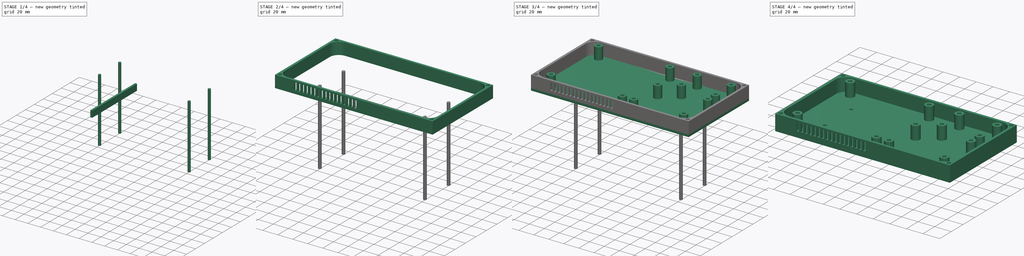
[diagram: build sequence overview — one tinted view per stage of 4, left to right]
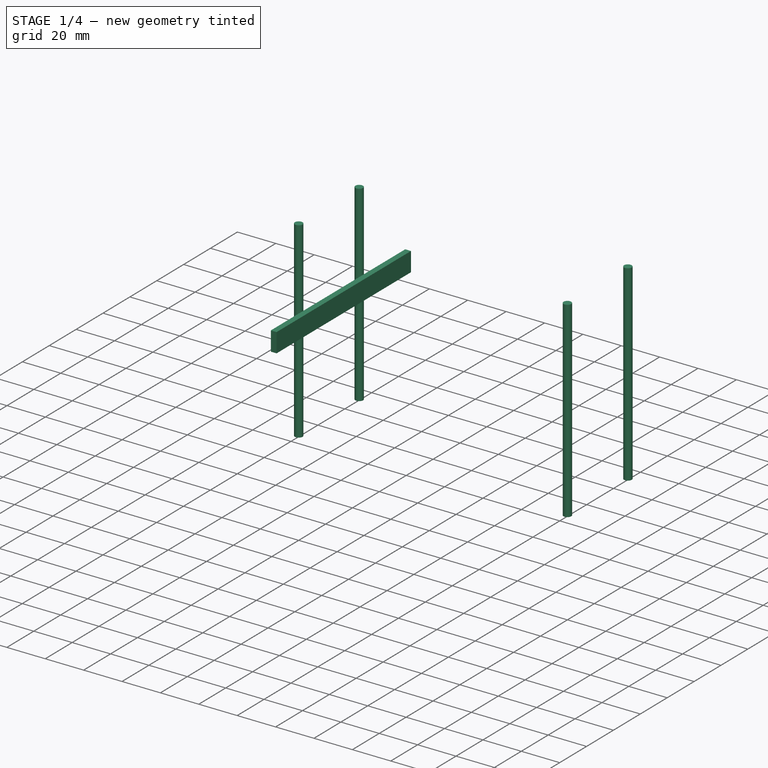
[diagram: stage 1 of 4 — iso view after this stage's code; geometry added in this stage tinted green]
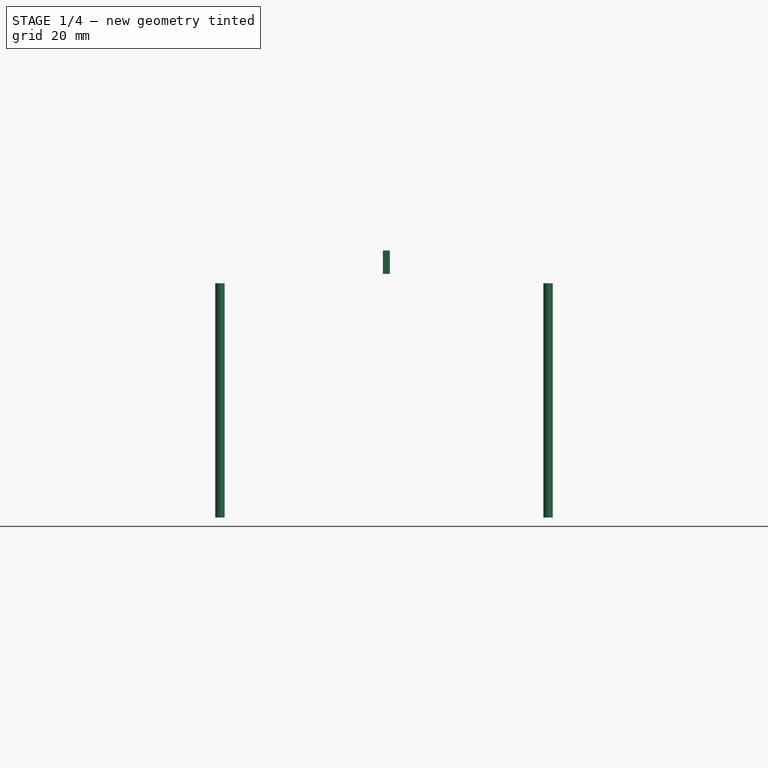
[diagram: stage 1 of 4 — front view after this stage's code; geometry added in this stage tinted green]
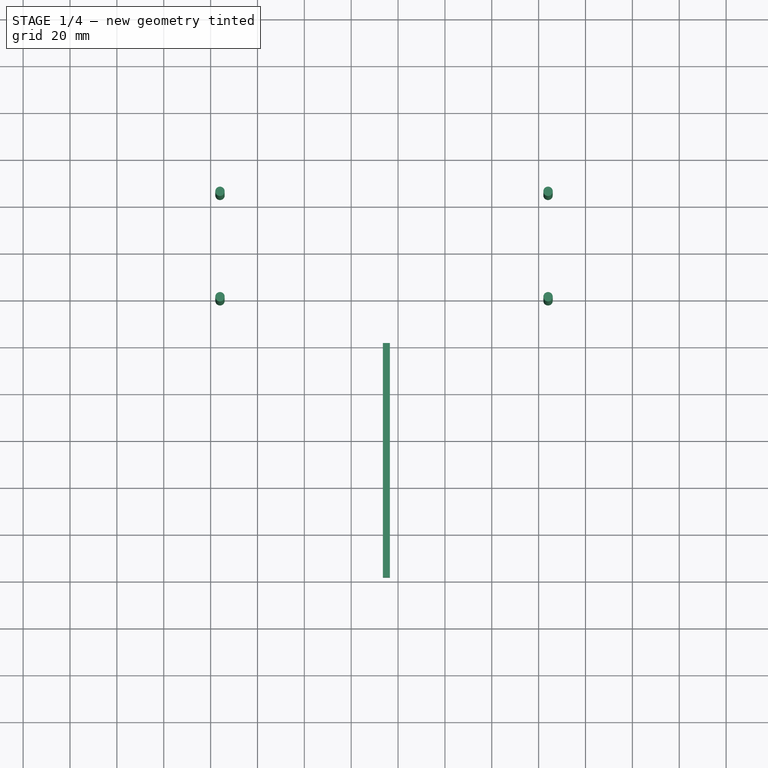
[diagram: stage 1 of 4 — top view after this stage's code; geometry added in this stage tinted green]
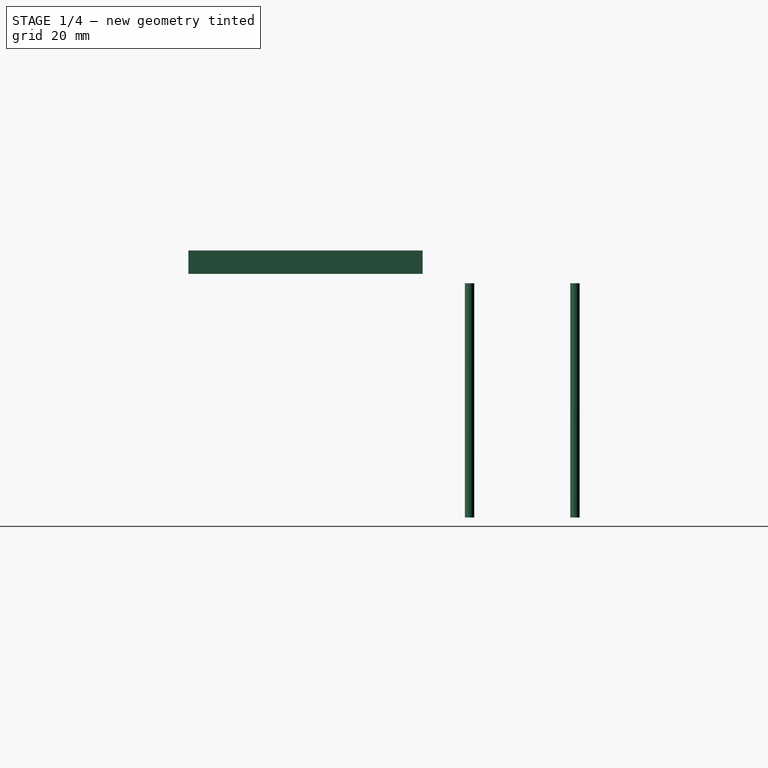
[diagram: stage 1 of 4 — right view after this stage's code; geometry added in this stage tinted green]
FCSTD DOCUMENT  (FreeCAD 0.15R4606 (Git))
Label: electronics_carrier
License: All rights reserved
LicenseURL: http://en.wikipedia.org/wiki/All_rights_reserved
objects: Sketcher::SketchObject×5, PartDesign::Pad×5, Part::MultiFuse×2, Part::Cut×2, Part::FeaturePython×1
note: 20 computed .brp shape members not serialized (recipe doc carries the construction recipe); baked Part::Feature solids carry a one-line shape summary decoded from their .brp

FEATURE [Sketcher::SketchObject] Sketch003
  Placement = pos=(0,0,0) rot=(-1,0,0;4.71239rad)
  sketch-geometry (4):
    g0: LineSegment StartX=-6.5 StartY=14 StartZ=0 EndX=-3.5 EndY=14 EndZ=0
    g1: LineSegment StartX=-3.5 StartY=14 StartZ=0 EndX=-3.5 EndY=4 EndZ=0
    g2: LineSegment StartX=-3.5 StartY=4 StartZ=0 EndX=-6.5 EndY=4 EndZ=0
    g3: LineSegment StartX=-6.5 StartY=4 StartZ=0 EndX=-6.5 EndY=14 EndZ=0
  constraints (12):
    c: Coincident(g0,g1)
    c: Coincident(g1,g2)
    c: Coincident(g2,g3)
    c: Coincident(g3,g0)
    c: Horizontal(g0)
    c: Horizontal(g2)
    c: Vertical(g1)
    c: Vertical(g3)
    c: DistanceX(g-1,g1) = -3.5
    c: Distance(g2) = 3
    c: Distance(g3) = 10
    c: DistanceY(g-1,g1) = 4
FEATURE [PartDesign::Pad] Pad003  label="Air Hole"
  Length = 100
  Length2 = 100
  Placement = pos=(0,0,0) rot=(-1,0,0;4.71239rad)
  Sketch = -> Sketch003
  Type = 0
FEATURE [Sketcher::SketchObject] Sketch004
  sketch-geometry (8):
    g0: Circle CenterX=-76 CenterY=65 CenterZ=0 NormalX=0 NormalY=0 NormalZ=1 Radius=2
    g1: Circle CenterX=-76 CenterY=20 CenterZ=0 NormalX=0 NormalY=0 NormalZ=1 Radius=2
    g2: Circle CenterX=64 CenterY=65 CenterZ=0 NormalX=0 NormalY=0 NormalZ=1 Radius=2
    g3: Circle CenterX=64 CenterY=20 CenterZ=0 NormalX=0 NormalY=0 NormalZ=1 Radius=2
    g4: LineSegment [constr] StartX=-76 StartY=65 StartZ=0 EndX=64 EndY=65 EndZ=0
    g5: LineSegment [constr] StartX=64 StartY=65 StartZ=0 EndX=64 EndY=20 EndZ=0
    g6: LineSegment [constr] StartX=64 StartY=20 StartZ=0 EndX=-76 EndY=20 EndZ=0
    g7: LineSegment [constr] StartX=-76 StartY=20 StartZ=0 EndX=-76 EndY=65 EndZ=0
  constraints (20):
    c: Radius(g0) = 2
    c: Equal(g1,g0)
    c: Equal(g0,g2)
    c: Equal(g2,g3)
    c: Coincident(g4,g5)
    c: Coincident(g5,g6)
    c: Coincident(g6,g7)
    c: Coincident(g7,g4)
    c: Horizontal(g4)
    c: Horizontal(g6)
    c: Vertical(g5)
    c: Vertical(g7)
    c: Distance(g5) = 45
    c: Distance(g4) = 140
    c: Coincident(g1,g6)
    c: Coincident(g0,g4)
    c: Coincident(g2,g4)
    c: Coincident(g3,g5)
    c: DistanceX(g-2,g1) = -76
    c: DistanceY(g-1,g3) = 20
FEATURE [PartDesign::Pad] Pad004  label="Base Mount Holes"
  Length = 100
  Length2 = 100
  Reversed = true
  Sketch = -> Sketch004
  Type = 0
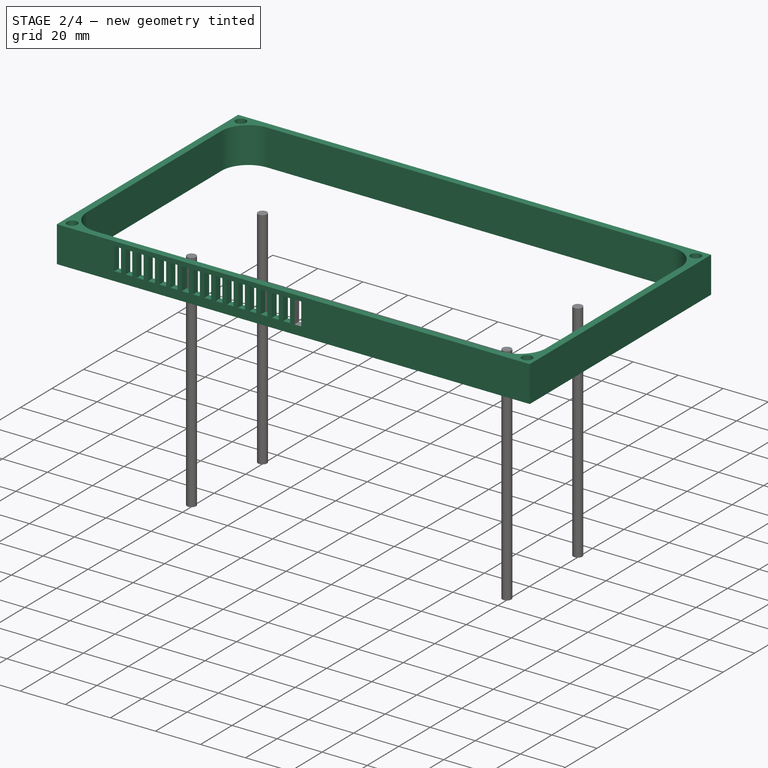
[diagram: stage 2 of 4 — iso view after this stage's code; geometry added in this stage tinted green]
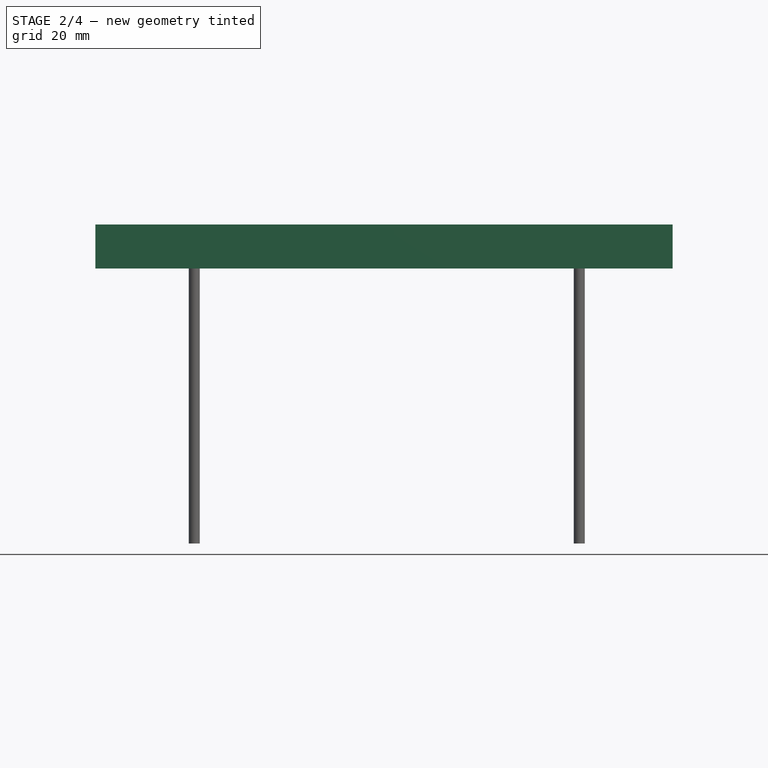
[diagram: stage 2 of 4 — front view after this stage's code; geometry added in this stage tinted green]
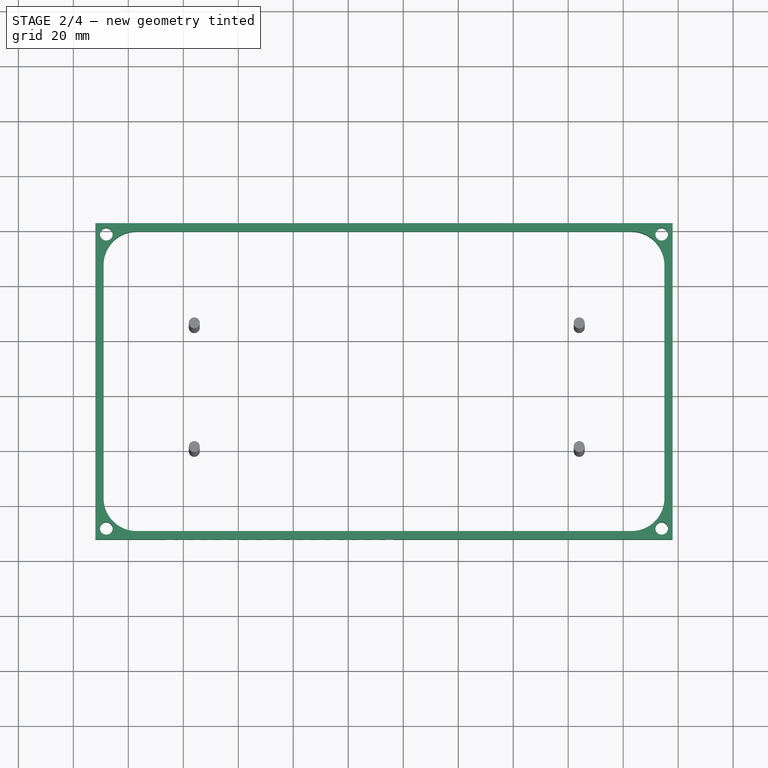
[diagram: stage 2 of 4 — top view after this stage's code; geometry added in this stage tinted green]
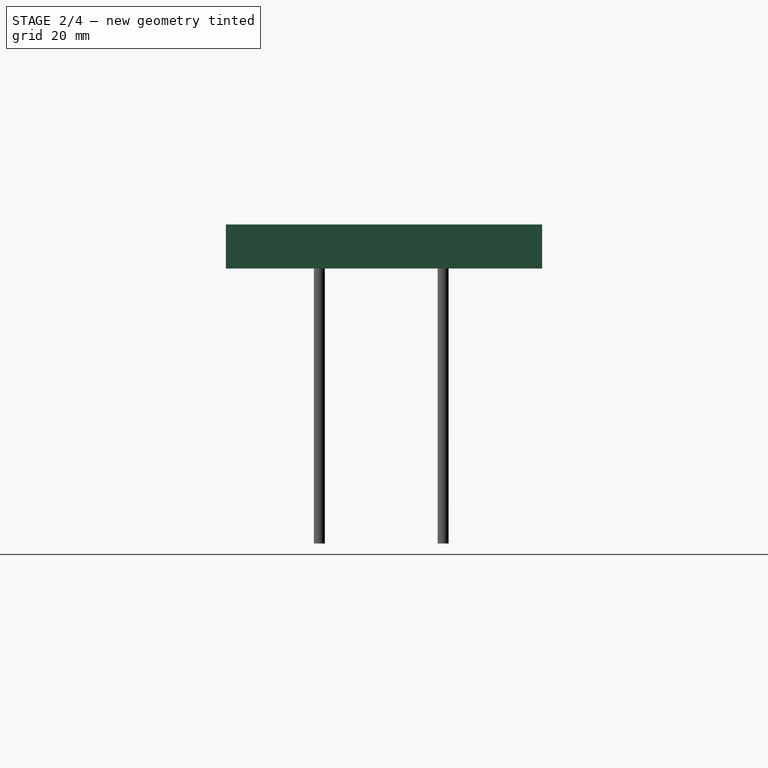
[diagram: stage 2 of 4 — right view after this stage's code; geometry added in this stage tinted green]
FEATURE [Sketcher::SketchObject] Sketch002
  sketch-geometry (16):
    g0: LineSegment StartX=-112 StartY=101 StartZ=0 EndX=98 EndY=101 EndZ=0
    g1: LineSegment StartX=98 StartY=101 StartZ=0 EndX=98 EndY=-14 EndZ=0
    g2: LineSegment StartX=98 StartY=-14 StartZ=0 EndX=-112 EndY=-14 EndZ=0
    g3: LineSegment StartX=-112 StartY=-14 StartZ=0 EndX=-112 EndY=101 EndZ=0
    g4: LineSegment StartX=-97 StartY=98 StartZ=0 EndX=83 EndY=98 EndZ=0
    g5: LineSegment StartX=95 StartY=86 StartZ=0 EndX=95 EndY=1 EndZ=0
    g6: LineSegment StartX=83 StartY=-11 StartZ=0 EndX=-97 EndY=-11 EndZ=0
    g7: LineSegment StartX=-109 StartY=1 StartZ=0 EndX=-109 EndY=86 EndZ=0
    g8: ArcOfCircle CenterX=-97 CenterY=86 CenterZ=0 NormalX=0 NormalY=0 NormalZ=1 Radius=12 StartAngle=1.5708 EndAngle=3.14159
    g9: ArcOfCircle CenterX=83 CenterY=86 CenterZ=0 NormalX=0 NormalY=0 NormalZ=1 Radius=12 StartAngle=0 EndAngle=1.5708
    g10: ArcOfCircle CenterX=83 CenterY=1 CenterZ=0 NormalX=0 NormalY=0 NormalZ=1 Radius=12 StartAngle=4.71239 EndAngle=6.28319
    g11: ArcOfCircle CenterX=-97 CenterY=1 CenterZ=0 NormalX=0 NormalY=0 NormalZ=1 Radius=12 StartAngle=3.14159 EndAngle=4.71239
    g12: Circle CenterX=-108 CenterY=97 CenterZ=0 NormalX=0 NormalY=0 NormalZ=1 Radius=2.3
    g13: Circle CenterX=-108 CenterY=-10 CenterZ=0 NormalX=0 NormalY=0 NormalZ=1 Radius=2.3
    g14: Circle CenterX=94 CenterY=-10 CenterZ=0 NormalX=0 NormalY=0 NormalZ=1 Radius=2.3
    g15: Circle CenterX=94 CenterY=97 CenterZ=0 NormalX=0 NormalY=0 NormalZ=1 Radius=2.3
  constraints (44):
    c: Coincident(g0,g1)
    c: Coincident(g1,g2)
    c: Coincident(g2,g3)
    c: Coincident(g3,g0)
    c: Horizontal(g0)
    c: Horizontal(g2)
    c: Vertical(g1)
    c: Vertical(g3)
    c: Distance(g3) = 115
    c: Distance(g2) = 210
    c: DistanceX(g-1,g2) = -112
    c: DistanceY(g-1,g2) = -14
    c: Horizontal(g4)
    c: Horizontal(g6)
    c: Vertical(g5)
    c: Vertical(g7)
    c: Tangent(g4,g8) = 1.5708
    c: Tangent(g7,g8) = 1.5708
    c: Tangent(g4,g9) = 1.5708
    c: Tangent(g5,g9) = 1.5708
    c: Tangent(g5,g10) = 1.5708
    c: Tangent(g6,g10) = 1.5708
    c: Tangent(g6,g11) = 1.5708
    c: Tangent(g7,g11) = 1.5708
    c: Radius(g8) = 12
    c: DistanceY(g4,g0) = 3
    c: DistanceY(g6,g1) = -3
    c: DistanceX(g1,g5) = -3
    c: DistanceX(g7,g2) = -3
    c: Radius(g11) = 12
    c: Radius(g9) = 12
    c: Radius(g10) = 12
    c: Radius(g12) = 2.3
    c: DistanceX(g12,g0) = -4
    c: DistanceY(g0,g12) = -4
    c: Radius(g13) = 2.3
    c: DistanceY(g13,g2) = -4
    c: DistanceX(g13,g2) = -4
    c: Radius(g14) = 2.3
    c: DistanceY(g14,g1) = -4
    c: DistanceX(g14,g1) = 4
    c: Radius(g15) = 2.3
    c: DistanceX(g15,g0) = 4
    c: DistanceY(g15,g0) = 4
FEATURE [PartDesign::Pad] Pad002  label="Side Wall"
  Length = 16
  Length2 = 100
  Sketch = -> Sketch002
  Type = 0
FEATURE [Part::FeaturePython] Array  # Draft array (typed FeaturePython)
  Angle = 360
  ArrayType = 0
  Axis = (1,0,0)
  Base = -> Pad003
  Center = (0,0,0)
  Fuse = false
  IntervalAxis = (0,0,0)
  IntervalX = (-5,0,0)
  IntervalY = (0,1,0)
  IntervalZ = (0,0,0)
  NumberPolar = 1
  NumberX = 17
  NumberY = 0
  NumberZ = 1
FEATURE [Part::Cut] Cut
  Base = -> Pad002
  Tool = -> Array
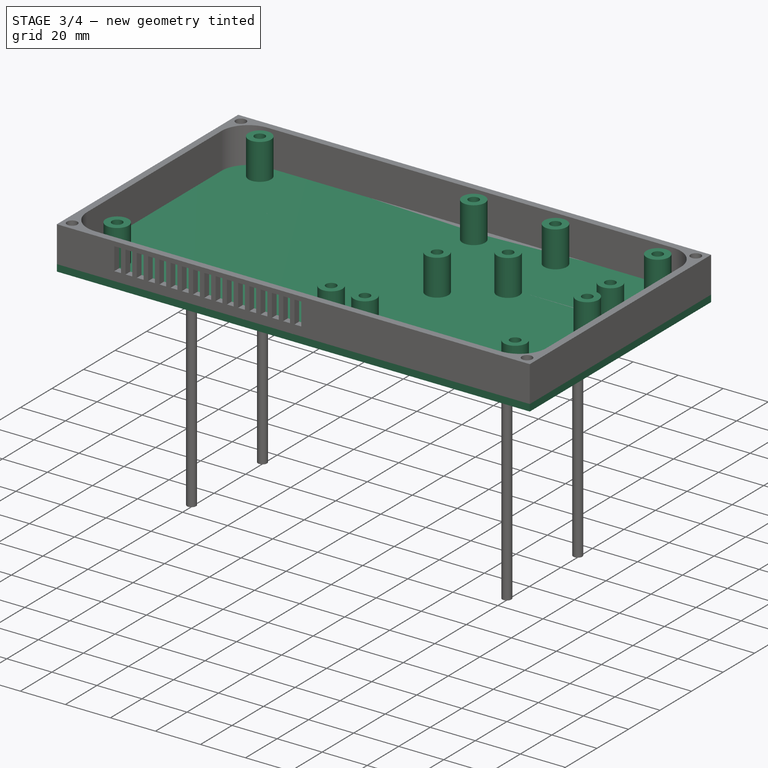
[diagram: stage 3 of 4 — iso view after this stage's code; geometry added in this stage tinted green]
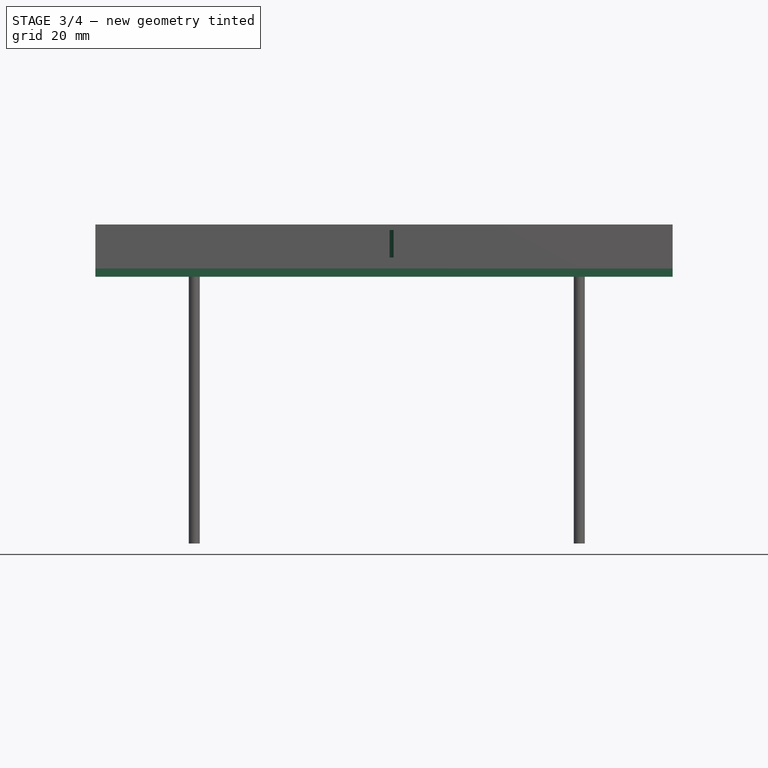
[diagram: stage 3 of 4 — front view after this stage's code; geometry added in this stage tinted green]
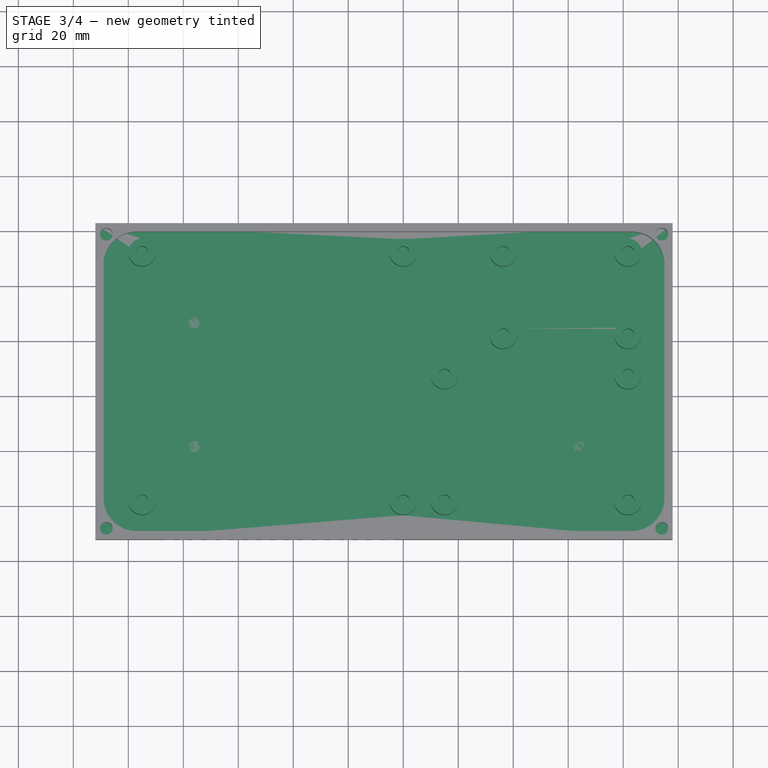
[diagram: stage 3 of 4 — top view after this stage's code; geometry added in this stage tinted green]
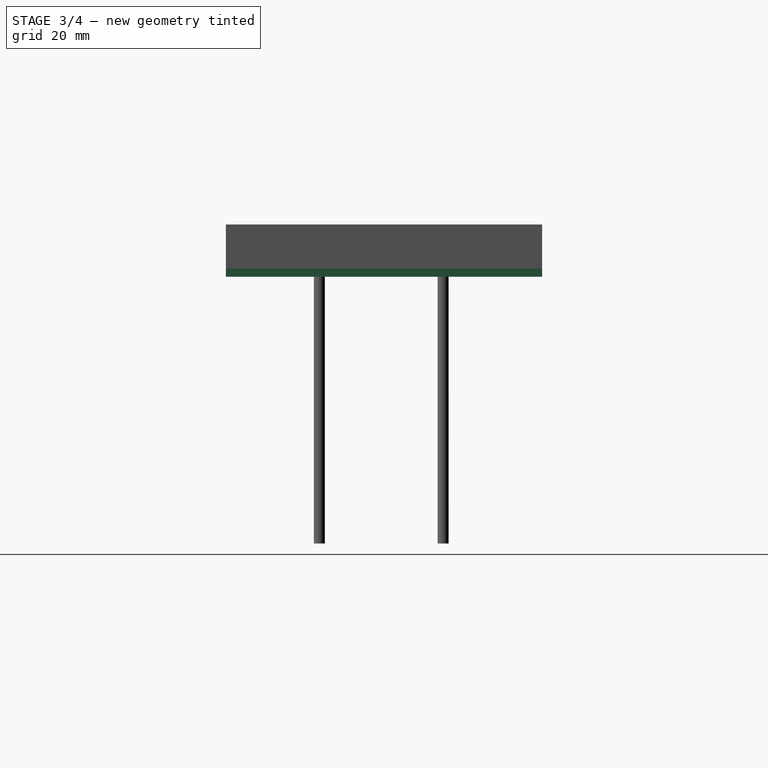
[diagram: stage 3 of 4 — right view after this stage's code; geometry added in this stage tinted green]
FEATURE [Sketcher::SketchObject] Sketch
  sketch-geometry (36):
    g0: LineSegment [constr] StartX=-95 StartY=90.4 StartZ=0 EndX=0 EndY=90.4 EndZ=0
    g1: LineSegment [constr] StartX=0 StartY=90.4 StartZ=0 EndX=0 EndY=0 EndZ=0
    g2: LineSegment [constr] StartX=0 StartY=0 StartZ=0 EndX=-95 EndY=0 EndZ=0
    g3: LineSegment [constr] StartX=-95 StartY=0 StartZ=0 EndX=-95 EndY=90.4 EndZ=0
    g4: Circle CenterX=-95 CenterY=90.4 CenterZ=0 NormalX=0 NormalY=0 NormalZ=1 Radius=5
    g5: Circle CenterX=-95 CenterY=90.4 CenterZ=0 NormalX=0 NormalY=0 NormalZ=1 Radius=2.3
    g6: Circle CenterX=0 CenterY=90.4 CenterZ=0 NormalX=0 NormalY=0 NormalZ=1 Radius=5
    g7: Circle CenterX=0 CenterY=90.4 CenterZ=0 NormalX=0 NormalY=0 NormalZ=1 Radius=2.3
    g8: Circle CenterX=-95 CenterY=0 CenterZ=0 NormalX=0 NormalY=0 NormalZ=1 Radius=2.3
    g9: Circle CenterX=-95 CenterY=0 CenterZ=0 NormalX=0 NormalY=0 NormalZ=1 Radius=5
    g10: Circle CenterX=0 CenterY=0 CenterZ=0 NormalX=0 NormalY=0 NormalZ=1 Radius=2.3
    g11: Circle CenterX=0 CenterY=0 CenterZ=0 NormalX=0 NormalY=0 NormalZ=1 Radius=5
    g12: LineSegment [constr] StartX=36.3 StartY=90.4 StartZ=0 EndX=81.7 EndY=90.4 EndZ=0
    g13: LineSegment [constr] StartX=81.7 StartY=90.4 StartZ=0 EndX=81.7 EndY=60.4 EndZ=0
    g14: LineSegment [constr] StartX=81.7 StartY=60.4 StartZ=0 EndX=36.3 EndY=60.4 EndZ=0
    g15: LineSegment [constr] StartX=36.3 StartY=60.4 StartZ=0 EndX=36.3 EndY=90.4 EndZ=0
    g16: Circle CenterX=36.3 CenterY=60.4 CenterZ=0 NormalX=0 NormalY=0 NormalZ=1 Radius=2.3
    g17: Circle CenterX=36.3 CenterY=90.4 CenterZ=0 NormalX=0 NormalY=0 NormalZ=1 Radius=2.3
    g18: Circle CenterX=81.7 CenterY=90.4 CenterZ=0 NormalX=0 NormalY=0 NormalZ=1 Radius=2.3
    g19: Circle CenterX=81.7 CenterY=60.4 CenterZ=0 NormalX=0 NormalY=0 NormalZ=1 Radius=2.3
    g20: Circle CenterX=36.3 CenterY=90.4 CenterZ=0 NormalX=0 NormalY=0 NormalZ=1 Radius=5
    g21: Circle CenterX=81.7 CenterY=90.4 CenterZ=0 NormalX=0 NormalY=0 NormalZ=1 Radius=5
    g22: Circle CenterX=36.3 CenterY=60.4 CenterZ=0 NormalX=0 NormalY=0 NormalZ=1 Radius=5
    g23: Circle CenterX=81.7 CenterY=60.4 CenterZ=0 NormalX=0 NormalY=0 NormalZ=1 Radius=5
    g24: LineSegment [constr] StartX=15 StartY=45.75 StartZ=0 EndX=81.7 EndY=45.75 EndZ=0
    g25: LineSegment [constr] StartX=81.7 StartY=45.75 StartZ=0 EndX=81.7 EndY=0 EndZ=0
    g26: LineSegment [constr] StartX=81.7 StartY=0 StartZ=0 EndX=15 EndY=0 EndZ=0
    g27: LineSegment [constr] StartX=15 StartY=0 StartZ=0 EndX=15 EndY=45.75 EndZ=0
    g28: Circle CenterX=15 CenterY=45.75 CenterZ=0 NormalX=0 NormalY=0 NormalZ=1 Radius=2.3
    g29: Circle CenterX=81.7 CenterY=45.75 CenterZ=0 NormalX=0 NormalY=0 NormalZ=1 Radius=2.3
    g30: Circle CenterX=15 CenterY=0 CenterZ=0 NormalX=0 NormalY=0 NormalZ=1 Radius=2.3
    g31: Circle CenterX=81.7 CenterY=0 CenterZ=0 NormalX=0 NormalY=0 NormalZ=1 Radius=2.3
    g32: Circle CenterX=15 CenterY=45.75 CenterZ=0 NormalX=0 NormalY=0 NormalZ=1 Radius=5
    g33: Circle CenterX=81.7 CenterY=45.75 CenterZ=0 NormalX=0 NormalY=0 NormalZ=1 Radius=5
    g34: Circle CenterX=15 CenterY=0 CenterZ=0 NormalX=0 NormalY=0 NormalZ=1 Radius=5
    g35: Circle CenterX=81.7 CenterY=0 CenterZ=0 NormalX=0 NormalY=0 NormalZ=1 Radius=5
  constraints (83):
    c: Coincident(g0,g1)
    c: Coincident(g1,g2)
    c: Coincident(g2,g3)
    c: Coincident(g3,g0)
    c: Horizontal(g0)
    c: Horizontal(g2)
    c: Vertical(g1)
    c: Vertical(g3)
    c: Distance(g0) = 95
    c: Distance(g0,g2) = 90.4
    c: Coincident(g5,g4)
    c: Coincident(g5,g0)
    c: Radius(g5) = 2.3
    c: Radius(g4) = 5
    c: Coincident(g1,g-1)
    c: Coincident(g6,g7)
    c: Coincident(g9,g8)
    c: Coincident(g11,g10)
    c: Equal(g11,g6)
    c: Equal(g6,g4)
    c: Equal(g4,g9)
    c: Equal(g8,g10)
    c: Equal(g10,g7)
    c: Equal(g7,g5)
    c: Coincident(g8,g2)
    c: Coincident(g10,g-1)
    c: Coincident(g6,g0)
    c: Coincident(g12,g13)
    c: Coincident(g13,g14)
    c: Coincident(g14,g15)
    c: Coincident(g15,g12)
    c: Horizontal(g12)
    c: Horizontal(g14)
    c: Vertical(g13)
    c: Vertical(g15)
    c: Distance(g12) = 45.4
    c: Distance(g13) = 30
    c: Equal(g7,g16)
    c: Equal(g16,g17)
    c: Equal(g17,g19)
    c: Equal(g19,g18)
    c: Coincident(g17,g12)
    c: Coincident(g16,g14)
    c: Coincident(g18,g12)
    c: Coincident(g19,g13)
    c: Equal(g22,g20)
    c: Equal(g20,g23)
    c: Equal(g23,g21)
    c: Equal(g21,g4)
    c: Coincident(g20,g12)
    c: Coincident(g21,g12)
    c: Coincident(g23,g13)
    c: Coincident(g22,g14)
    c: Coincident(g24,g25)
    c: Coincident(g25,g26)
    c: Coincident(g26,g27)
    c: Coincident(g27,g24)
    c: Horizontal(g24)
    c: Horizontal(g26)
    c: Vertical(g25)
    c: Vertical(g27)
    c: Distance(g25) = 45.75
    c: Distance(g24) = 66.7
    c: Coincident(g28,g24)
    c: Coincident(g29,g24)
    c: Coincident(g30,g26)
    c: Coincident(g31,g25)
    c: Equal(g30,g31)
    c: Equal(g31,g29)
    c: Equal(g29,g28)
    c: Equal(g28,g5)
    c: Equal(g32,g34)
    c: Equal(g34,g33)
    c: Equal(g33,g35)
    c: Equal(g35,g4)
    c: Coincident(g32,g24)
    c: Coincident(g33,g24)
    c: Coincident(g34,g26)
    c: Coincident(g35,g25)
    c: PointOnObject(g25,g-1)
    c: DistanceX(g-1,g26) = 15
    c: DistanceY(g0,g12) = 0
    c: DistanceX(g13,g24) = 0
FEATURE [PartDesign::Pad] Pad  label="Pylons"
  Length = 16
  Length2 = 100
  Sketch = -> Sketch
  Type = 0
FEATURE [Sketcher::SketchObject] Sketch001
  sketch-geometry (4):
    g0: LineSegment StartX=-112 StartY=101 StartZ=0 EndX=98 EndY=101 EndZ=0
    g1: LineSegment StartX=98 StartY=101 StartZ=0 EndX=98 EndY=-14 EndZ=0
    g2: LineSegment StartX=98 StartY=-14 StartZ=0 EndX=-112 EndY=-14 EndZ=0
    g3: LineSegment StartX=-112 StartY=-14 StartZ=0 EndX=-112 EndY=101 EndZ=0
  constraints (12):
    c: Coincident(g0,g1)
    c: Coincident(g1,g2)
    c: Coincident(g2,g3)
    c: Coincident(g3,g0)
    c: Horizontal(g0)
    c: Horizontal(g2)
    c: Vertical(g1)
    c: Vertical(g3)
    c: Distance(g3) = 115
    c: Distance(g2) = 210
    c: DistanceY(g-1,g2) = -14
    c: DistanceX(g-2,g2) = -112
FEATURE [PartDesign::Pad] Pad001  label="Base"
  Length = 3
  Length2 = 100
  Reversed = true
  Sketch = -> Sketch001
  Type = 0
FEATURE [Part::MultiFuse] Fusion
  Shapes = -> [Pad,Pad001]
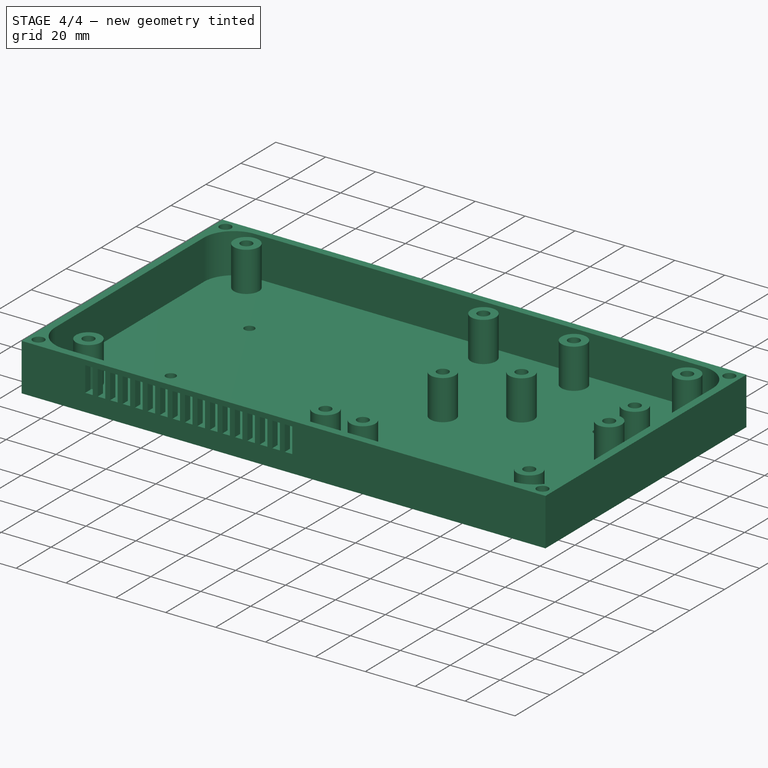
[diagram: stage 4 of 4 — iso view after this stage's code; geometry added in this stage tinted green]
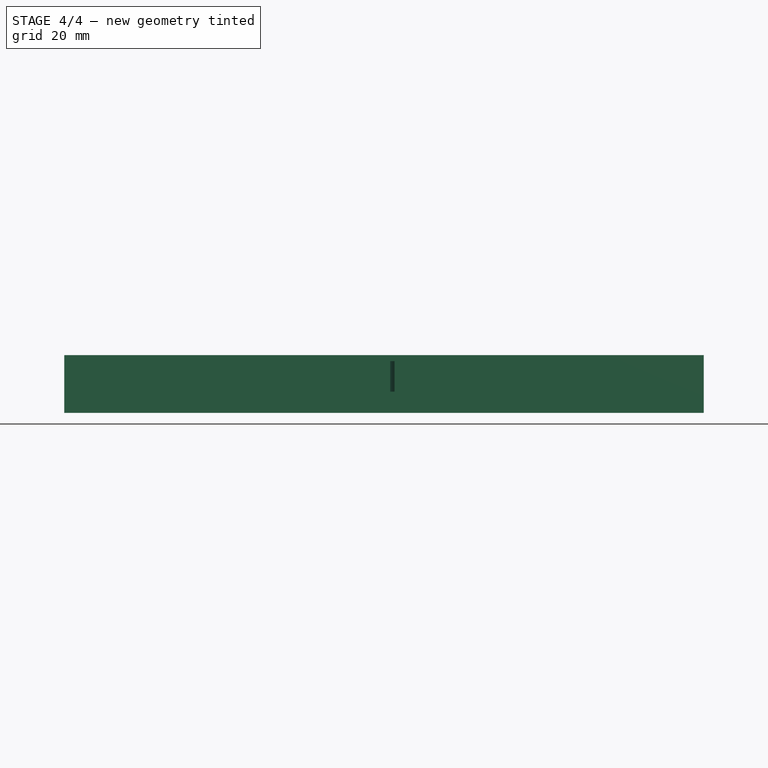
[diagram: stage 4 of 4 — front view after this stage's code; geometry added in this stage tinted green]
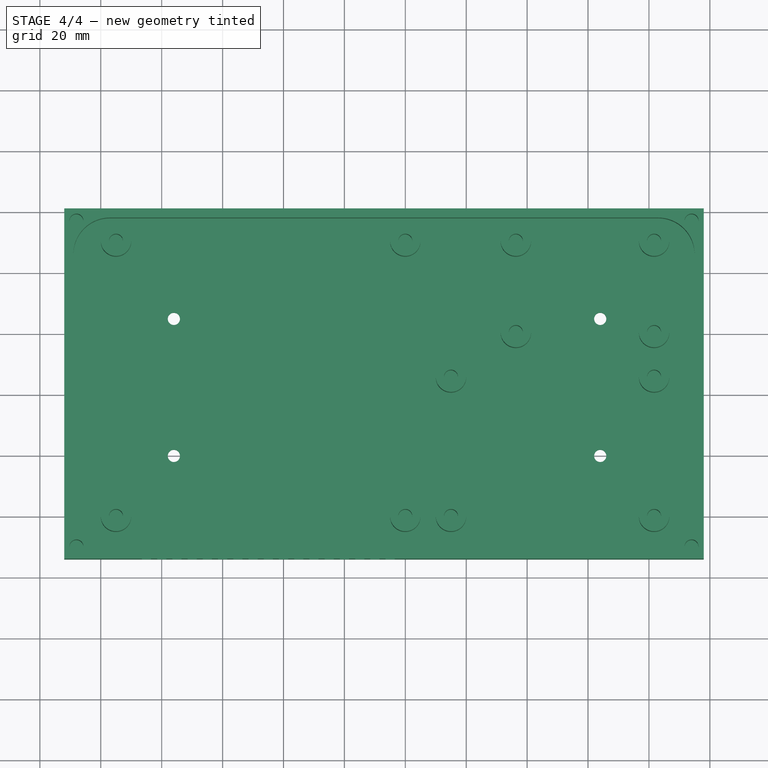
[diagram: stage 4 of 4 — top view after this stage's code; geometry added in this stage tinted green]
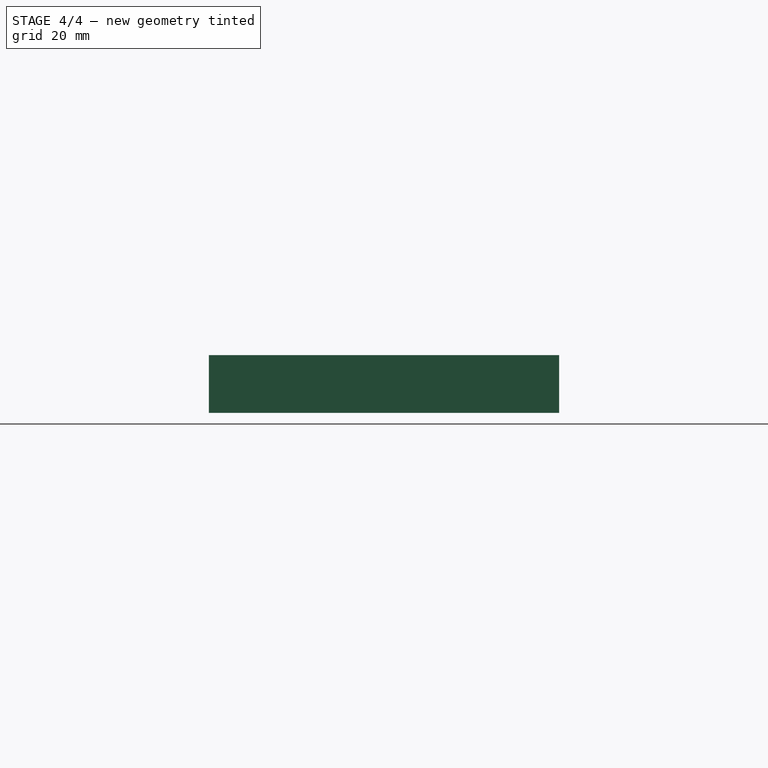
[diagram: stage 4 of 4 — right view after this stage's code; geometry added in this stage tinted green]
FEATURE [Part::MultiFuse] Fusion001
  Shapes = -> [Fusion,Cut]
FEATURE [Part::Cut] Cut001
  Base = -> Fusion001
  Tool = -> Pad004
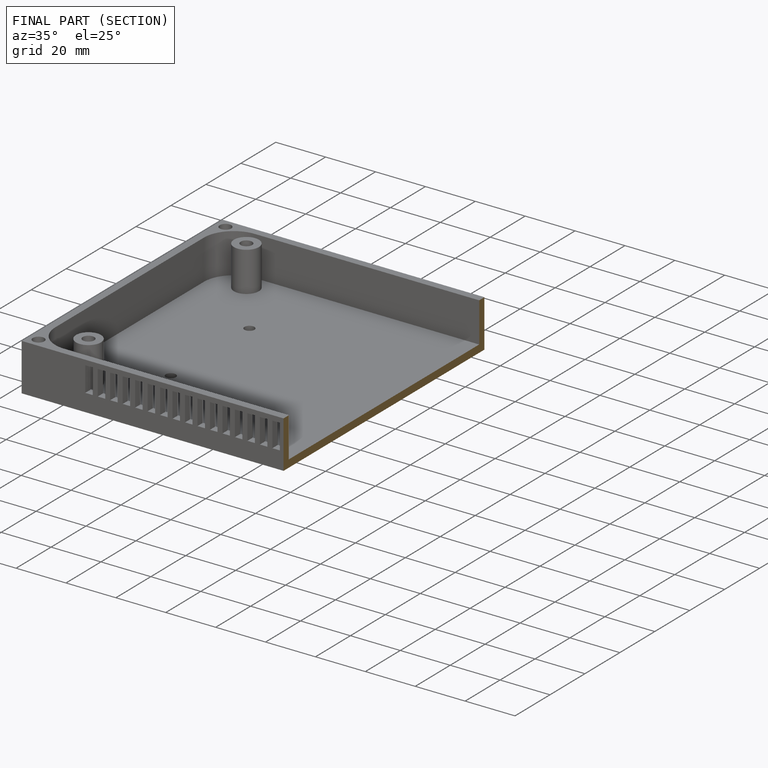
[diagram: finished part — half-section view (interior)]
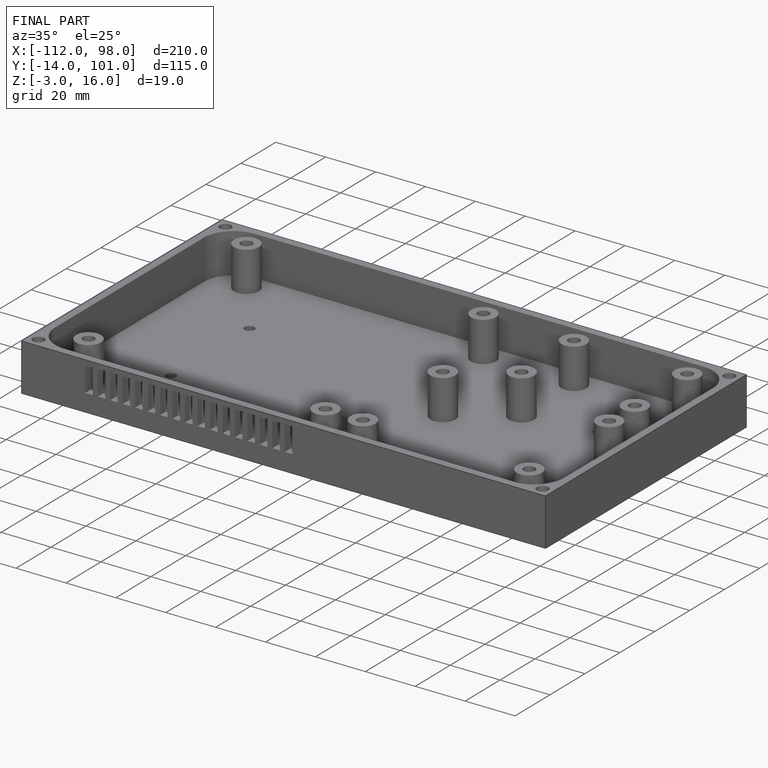
[diagram: finished part — iso view with bounding-box wireframe]
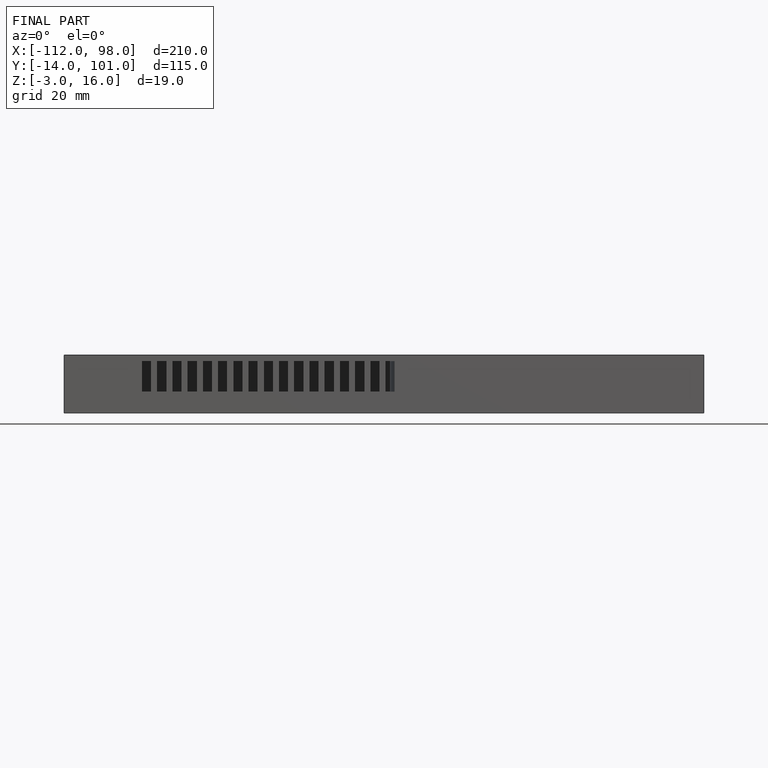
[diagram: finished part — front view with bounding-box wireframe]
